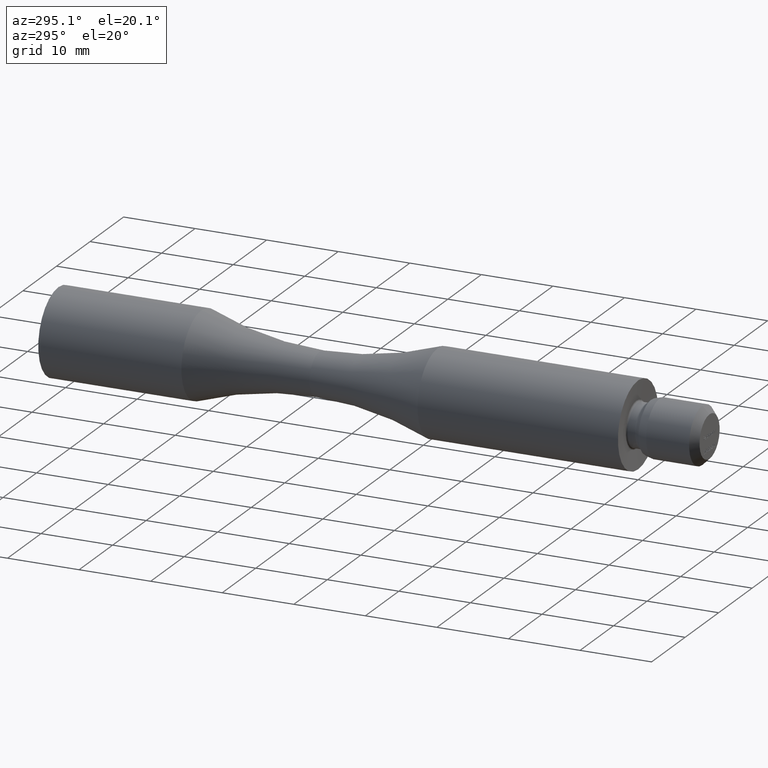
[diagram: clean part render]
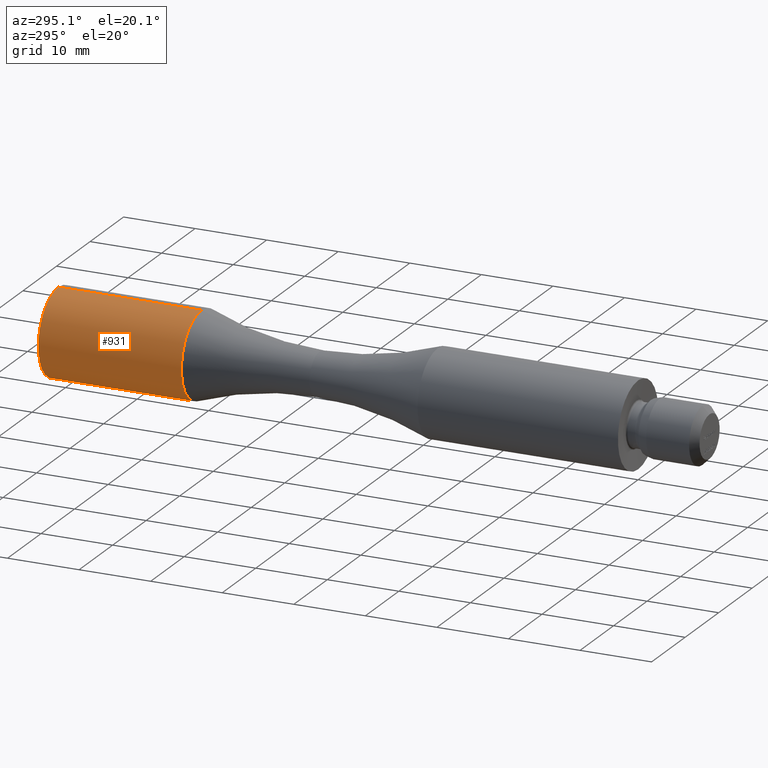
[diagram: same view with one face highlighted and labeled with its STEP entity id]
A machine part, auxiliary view. The second image highlights one B-rep face of the part: STEP entity #931.
In plain terms, the highlighted cylindrical surface (partial cylindrical patch) has radius 6 mm, axis along (-0, -1, -0).
Its self-contained STEP definition (entity closure, byte-faithful):
#140 = CARTESIAN_POINT ( 'NONE',  ( 7.347880794884121700E-016, 0.0000000000000000000, 6.000000000000001800 ) ) ;
#553 = VERTEX_POINT ( 'NONE', #1287 ) ;
#931 = ADVANCED_FACE ( 'NONE', ( #9726 ), #1514, .T. ) ;
#1287 = CARTESIAN_POINT ( 'NONE',  ( 7.347880794884123700E-016, 61.00000000000000000, 6.000000000000003600 ) ) ;
#1514 = CYLINDRICAL_SURFACE ( 'NONE', #12431, 6.000000000000001800 ) ;
#1735 = DIRECTION ( 'NONE',  ( 0.0000000000000000000, 0.0000000000000000000, -1.000000000000000000 ) ) ;
#1770 = ORIENTED_EDGE ( 'NONE', *, *, #3982, .T. ) ;
#2198 = VECTOR ( 'NONE', #11167, 1000.000000000000000 ) ;
#2512 = VECTOR ( 'NONE', #5515, 1000.000000000000000 ) ;
#3104 = CARTESIAN_POINT ( 'NONE',  ( 0.0000000000000000000, 81.00000000000000000, 0.0000000000000000000 ) ) ;
#3132 = EDGE_CURVE ( 'NONE', #553, #9132, #12347, .T. ) ;
#3982 = EDGE_CURVE ( 'NONE', #5541, #9132, #8430, .T. ) ;
#4183 = EDGE_CURVE ( 'NONE', #10963, #553, #7443, .T. ) ;
#4592 = CARTESIAN_POINT ( 'NONE',  ( 0.0000000000000000000, 81.00000000000000000, -6.000000000000000000 ) ) ;
#4702 = CARTESIAN_POINT ( 'NONE',  ( 0.0000000000000000000, 61.00000000000000000, -6.000000000000003600 ) ) ;
#5515 = DIRECTION ( 'NONE',  ( -0.0000000000000000000, -1.000000000000000000, -0.0000000000000000000 ) ) ;
#5541 = VERTEX_POINT ( 'NONE', #4592 ) ;
#5663 = AXIS2_PLACEMENT_3D ( 'NONE', #3104, #6338, #8437 ) ;
#6338 = DIRECTION ( 'NONE',  ( -0.0000000000000000000, -1.000000000000000000, -0.0000000000000000000 ) ) ;
#7024 = DIRECTION ( 'NONE',  ( -0.0000000000000000000, -1.000000000000000000, -0.0000000000000000000 ) ) ;
#7443 = LINE ( 'NONE', #140, #2512 ) ;
#8430 = LINE ( 'NONE', #13230, #2198 ) ;
#8437 = DIRECTION ( 'NONE',  ( 0.0000000000000000000, 0.0000000000000000000, -1.000000000000000000 ) ) ;
#8662 = ORIENTED_EDGE ( 'NONE', *, *, #3132, .F. ) ;
#8766 = ORIENTED_EDGE ( 'NONE', *, *, #4183, .F. ) ;
#8924 = AXIS2_PLACEMENT_3D ( 'NONE', #10498, #9586, #12609 ) ;
#9132 = VERTEX_POINT ( 'NONE', #4702 ) ;
#9204 = EDGE_CURVE ( 'NONE', #10963, #5541, #11398, .T. ) ;
#9586 = DIRECTION ( 'NONE',  ( -0.0000000000000000000, -1.000000000000000000, -0.0000000000000000000 ) ) ;
#9726 = FACE_OUTER_BOUND ( 'NONE', #10004, .T. ) ;
#10004 = EDGE_LOOP ( 'NONE', ( #8766, #11135, #1770, #8662 ) ) ;
#10498 = CARTESIAN_POINT ( 'NONE',  ( 0.0000000000000000000, 61.00000000000000000, 0.0000000000000000000 ) ) ;
#10963 = VERTEX_POINT ( 'NONE', #11893 ) ;
#11135 = ORIENTED_EDGE ( 'NONE', *, *, #9204, .T. ) ;
#11167 = DIRECTION ( 'NONE',  ( -0.0000000000000000000, -1.000000000000000000, -0.0000000000000000000 ) ) ;
#11398 = CIRCLE ( 'NONE', #5663, 6.000000000000000000 ) ;
#11893 = CARTESIAN_POINT ( 'NONE',  ( 7.347880794884120700E-016, 81.00000000000000000, 6.000000000000000000 ) ) ;
#12347 = CIRCLE ( 'NONE', #8924, 6.000000000000002700 ) ;
#12431 = AXIS2_PLACEMENT_3D ( 'NONE', #13398, #7024, #1735 ) ;
#12609 = DIRECTION ( 'NONE',  ( 0.0000000000000000000, 0.0000000000000000000, -1.000000000000000000 ) ) ;
#13230 = CARTESIAN_POINT ( 'NONE',  ( 0.0000000000000000000, 0.0000000000000000000, -6.000000000000001800 ) ) ;
#13398 = CARTESIAN_POINT ( 'NONE',  ( 0.0000000000000000000, 0.0000000000000000000, 0.0000000000000000000 ) ) ;